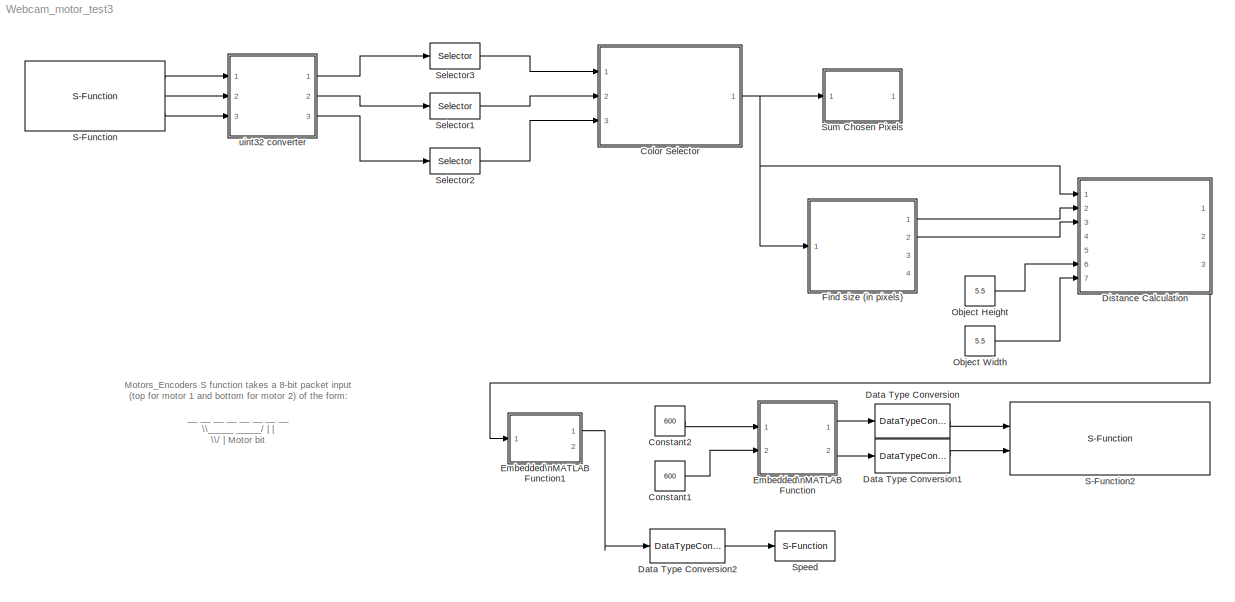
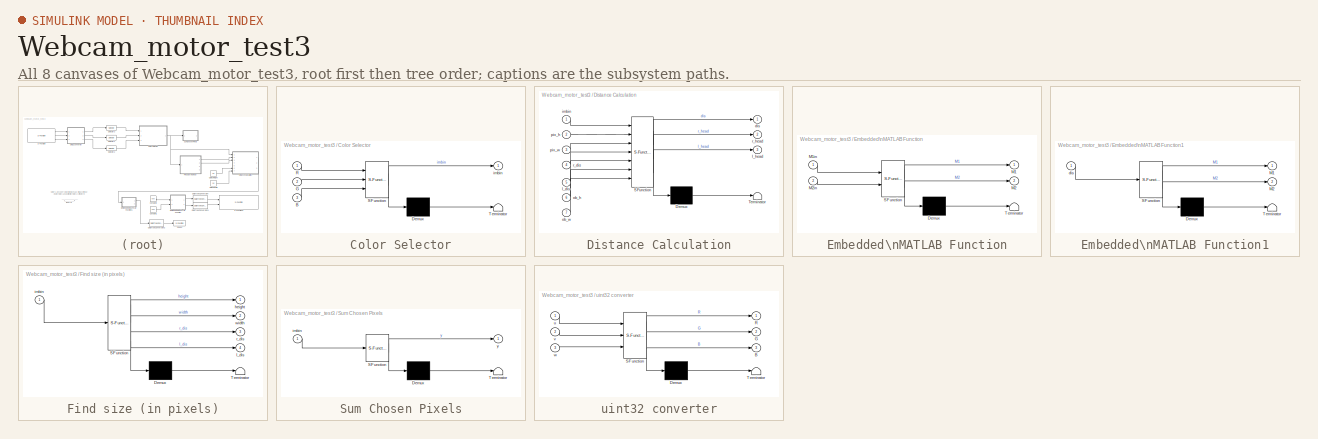
[diagram: thumbnail index - all 8 canvases of the model, root first then tree order]
MODEL Webcam_motor_test3
KIND model
BLOCK [SubSystem] Color Selector
  ErrorFcn = Stateflow.Translate.translate
  FunctionWithSeparateData = off
  MaskDescription = Embedded MATLAB block
  MaskDisplay = disp('color_selection');
  MaskHideContents = off
  MaskIconFrame = on
  MaskIconOpaque = off
  MaskIconRotate = none
  MaskIconUnits = normalized
  MaskPortRotate = default
  MaskSelfModifiable = on
  MaskType = Stateflow
  MinAlgLoopOccurrences = off
  Opaque = off
  PermitHierarchicalResolution = ExplicitOnly
  Ports = [3, 1]
  PropExecContextOutsideSubsystem = off
  RTWSystemCode = Auto
  RequestExecContextInheritance = off
  TreatAsAtomicUnit = on
BLOCK [Demux] Color Selector/ Demux 
  Outputs = 1
  Ports = [1, 1]
BLOCK [S-Function] Color Selector/ SFunction 
  EnableBusSupport = on
  FunctionName = sf_sfun
  PortCounts = [3 2]
  Ports = [3, 2]
  Tag = Stateflow S-Function Webcam_motor_test3 3
BLOCK [Terminator] Color Selector/ Terminator 
BLOCK [Inport] Color Selector/B
  IconDisplay = Port number
  Port = 3
BLOCK [Inport] Color Selector/G
  IconDisplay = Port number
  Port = 2
BLOCK [Inport] Color Selector/R
  IconDisplay = Port number
BLOCK [Outport] Color Selector/imbin
  IconDisplay = Port number
BLOCK [Constant] Constant1
  Value = 600
BLOCK [Constant] Constant2
  Value = 600
BLOCK [DataTypeConversion] Data Type Conversion
  OutDataTypeMode = uint8
  OutDataTypeStr = uint8
  RndMeth = Floor
  SaturateOnIntegerOverflow = off
BLOCK [DataTypeConversion] Data Type Conversion1
  OutDataTypeMode = uint8
  OutDataTypeStr = uint8
  RndMeth = Floor
  SaturateOnIntegerOverflow = off
BLOCK [DataTypeConversion] Data Type Conversion2
  OutDataTypeMode = uint32
  OutDataTypeStr = uint32
  RndMeth = Floor
  SaturateOnIntegerOverflow = off
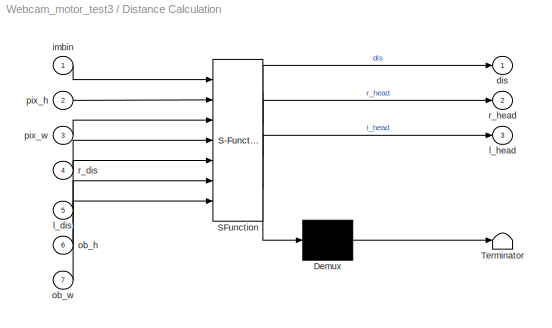
BLOCK [SubSystem] Distance Calculation
  ErrorFcn = Stateflow.Translate.translate
  FunctionWithSeparateData = off
  MaskDescription = Embedded MATLAB block
  MaskDisplay = disp('find_dis');
  MaskHideContents = off
  MaskIconFrame = on
  MaskIconOpaque = off
  MaskIconRotate = none
  MaskIconUnits = normalized
  MaskPortRotate = default
  MaskSelfModifiable = on
  MaskType = Stateflow
  MinAlgLoopOccurrences = off
  Opaque = off
  PermitHierarchicalResolution = ExplicitOnly
  Ports = [7, 3]
  PropExecContextOutsideSubsystem = off
  RTWSystemCode = Auto
  RequestExecContextInheritance = off
  TreatAsAtomicUnit = on
BLOCK [Demux] Distance Calculation/ Demux 
  Outputs = 1
  Ports = [1, 1]
BLOCK [S-Function] Distance Calculation/ SFunction 
  EnableBusSupport = on
  FunctionName = sf_sfun
  PortCounts = [7 4]
  Ports = [7, 4]
  Tag = Stateflow S-Function Webcam_motor_test3 6
BLOCK [Terminator] Distance Calculation/ Terminator 
BLOCK [Outport] Distance Calculation/dis
  IconDisplay = Port number
BLOCK [Inport] Distance Calculation/imbin
  IconDisplay = Port number
BLOCK [Inport] Distance Calculation/l_dis
  IconDisplay = Port number
  Port = 5
BLOCK [Outport] Distance Calculation/l_head
  IconDisplay = Port number
  Port = 3
BLOCK [Inport] Distance Calculation/ob_h
  IconDisplay = Port number
  Port = 6
BLOCK [Inport] Distance Calculation/ob_w
  IconDisplay = Port number
  Port = 7
BLOCK [Inport] Distance Calculation/pix_h
  IconDisplay = Port number
  Port = 2
BLOCK [Inport] Distance Calculation/pix_w
  IconDisplay = Port number
  Port = 3
BLOCK [Inport] Distance Calculation/r_dis
  IconDisplay = Port number
  Port = 4
BLOCK [Outport] Distance Calculation/r_head
  IconDisplay = Port number
  Port = 2
BLOCK [SubSystem] Embedded\nMATLAB Function
  ErrorFcn = Stateflow.Translate.translate
  FunctionWithSeparateData = off
  MaskDescription = Embedded MATLAB block
  MaskDisplay = disp('MotorPackets');
  MaskHideContents = off
  MaskIconFrame = on
  MaskIconOpaque = off
  MaskIconRotate = none
  MaskIconUnits = normalized
  MaskPortRotate = default
  MaskSelfModifiable = on
  MaskType = Stateflow
  MinAlgLoopOccurrences = off
  Opaque = off
  PermitHierarchicalResolution = ExplicitOnly
  Ports = [2, 2]
  PropExecContextOutsideSubsystem = off
  RTWSystemCode = Auto
  RequestExecContextInheritance = off
  TreatAsAtomicUnit = on
BLOCK [Demux] Embedded\nMATLAB Function/ Demux 
  Outputs = 1
  Ports = [1, 1]
BLOCK [S-Function] Embedded\nMATLAB Function/ SFunction 
  EnableBusSupport = on
  FunctionName = sf_sfun
  PortCounts = [2 3]
  Ports = [2, 3]
  Tag = Stateflow S-Function Webcam_motor_test3 5
BLOCK [Terminator] Embedded\nMATLAB Function/ Terminator 
BLOCK [Outport] Embedded\nMATLAB Function/M1
  IconDisplay = Port number
BLOCK [Inport] Embedded\nMATLAB Function/M1in
  IconDisplay = Port number
BLOCK [Outport] Embedded\nMATLAB Function/M2
  IconDisplay = Port number
  Port = 2
BLOCK [Inport] Embedded\nMATLAB Function/M2in
  IconDisplay = Port number
  Port = 2
BLOCK [SubSystem] Embedded\nMATLAB Function1
  FunctionWithSeparateData = off
  MaskDescription = Embedded MATLAB block
  MaskDisplay = disp('fcn');
  MaskHideContents = off
  MaskIconFrame = on
  MaskIconOpaque = off
  MaskIconRotate = none
  MaskIconUnits = autoscale
  MaskPortRotate = default
  MaskSelfModifiable = on
  MaskType = Stateflow
  MinAlgLoopOccurrences = off
  Opaque = off
  PermitHierarchicalResolution = ExplicitOnly
  Ports = [1, 2]
  PropExecContextOutsideSubsystem = off
  RTWSystemCode = Auto
  RequestExecContextInheritance = off
BLOCK [Demux] Embedded\nMATLAB Function1/ Demux 
  Outputs = 1
  Ports = [1, 1]
BLOCK [S-Function] Embedded\nMATLAB Function1/ SFunction 
  EnableBusSupport = on
  FunctionName = sf_sfun
  PortCounts = [1 3]
  Ports = [1, 3]
  Tag = Stateflow S-Function Webcam_motor_test3 7
BLOCK [Terminator] Embedded\nMATLAB Function1/ Terminator 
BLOCK [Outport] Embedded\nMATLAB Function1/M1
  IconDisplay = Port number
  OutDataType = sfix(16)
  OutScaling = 2^0
BLOCK [Outport] Embedded\nMATLAB Function1/M2
  IconDisplay = Port number
  Port = 2
BLOCK [Inport] Embedded\nMATLAB Function1/dis
  IconDisplay = Port number
  OutDataType = sfix(16)
  OutScaling = 2^0
BLOCK [SubSystem] Find size (in pixels)
  ErrorFcn = Stateflow.Translate.translate
  FunctionWithSeparateData = off
  MaskDescription = Embedded MATLAB block
  MaskDisplay = disp('hw_find');
  MaskHideContents = off
  MaskIconFrame = on
  MaskIconOpaque = off
  MaskIconRotate = none
  MaskIconUnits = normalized
  MaskPortRotate = default
  MaskSelfModifiable = on
  MaskType = Stateflow
  MinAlgLoopOccurrences = off
  Opaque = off
  PermitHierarchicalResolution = ExplicitOnly
  Ports = [1, 4]
  PropExecContextOutsideSubsystem = off
  RTWSystemCode = Auto
  RequestExecContextInheritance = off
  TreatAsAtomicUnit = on
BLOCK [Demux] Find size (in pixels)/ Demux 
  Outputs = 1
  Ports = [1, 1]
BLOCK [S-Function] Find size (in pixels)/ SFunction 
  EnableBusSupport = on
  FunctionName = sf_sfun
  PortCounts = [1 5]
  Ports = [1, 5]
  Tag = Stateflow S-Function Webcam_motor_test3 4
BLOCK [Terminator] Find size (in pixels)/ Terminator 
BLOCK [Outport] Find size (in pixels)/height
  IconDisplay = Port number
BLOCK [Inport] Find size (in pixels)/imbin
  IconDisplay = Port number
BLOCK [Outport] Find size (in pixels)/l_dis
  IconDisplay = Port number
  Port = 4
BLOCK [Outport] Find size (in pixels)/r_dis
  IconDisplay = Port number
  Port = 3
BLOCK [Outport] Find size (in pixels)/width
  IconDisplay = Port number
  Port = 2
BLOCK [Constant] Object Height
  Value = 5.5
BLOCK [Constant] Object Width
  Value = 5.5
BLOCK [S-Function] S-Function
  EnableBusSupport = off
  FunctionName = WebcamTest
  Ports = [0, 3]
BLOCK [S-Function] S-Function2
  EnableBusSupport = off
  FunctionName = Motors_Only_Boat2
  Ports = [2]
BLOCK [Selector] Selector1
  IndexOptions = Starting index (dialog),Starting index (dialog)
  Indices = 70,1
  InputPortWidth = 3
  NumberOfDimensions = 2
  OutputSizes = 340,640
  Ports = [1, 1]
BLOCK [Selector] Selector2
  IndexOptions = Starting index (dialog),Starting index (dialog)
  Indices = 70,1
  InputPortWidth = 3
  NumberOfDimensions = 2
  OutputSizes = 340,640
  Ports = [1, 1]
BLOCK [Selector] Selector3
  IndexOptions = Starting index (dialog),Starting index (dialog)
  Indices = 70,1
  InputPortWidth = 3
  NumberOfDimensions = 2
  OutputSizes = 340,640
  Ports = [1, 1]
BLOCK [S-Function] Speed
  EnableBusSupport = off
  FunctionName = printOut
  Ports = [1]
BLOCK [SubSystem] Sum Chosen Pixels
  ErrorFcn = Stateflow.Translate.translate
  FunctionWithSeparateData = off
  MaskDescription = Embedded MATLAB block
  MaskDisplay = disp('fcn');
  MaskHideContents = off
  MaskIconFrame = on
  MaskIconOpaque = off
  MaskIconRotate = none
  MaskIconUnits = normalized
  MaskPortRotate = default
  MaskSelfModifiable = on
  MaskType = Stateflow
  MinAlgLoopOccurrences = off
  Opaque = off
  PermitHierarchicalResolution = ExplicitOnly
  Ports = [1, 1]
  PropExecContextOutsideSubsystem = off
  RTWSystemCode = Auto
  RequestExecContextInheritance = off
  TreatAsAtomicUnit = on
BLOCK [Demux] Sum Chosen Pixels/ Demux 
  Outputs = 1
  Ports = [1, 1]
BLOCK [S-Function] Sum Chosen Pixels/ SFunction 
  EnableBusSupport = on
  FunctionName = sf_sfun
  PortCounts = [1 2]
  Ports = [1, 2]
  Tag = Stateflow S-Function Webcam_motor_test3 2
BLOCK [Terminator] Sum Chosen Pixels/ Terminator 
BLOCK [Inport] Sum Chosen Pixels/imbin
  IconDisplay = Port number
BLOCK [Outport] Sum Chosen Pixels/y
  IconDisplay = Port number
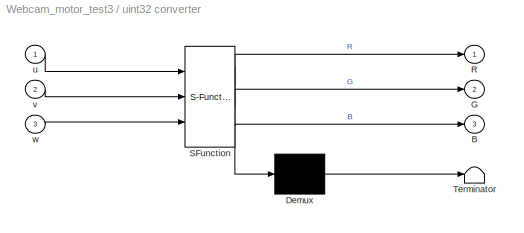
BLOCK [SubSystem] uint32 converter
  ErrorFcn = Stateflow.Translate.translate
  FunctionWithSeparateData = off
  MaskDescription = Embedded MATLAB block
  MaskDisplay = disp('fcn');
  MaskHideContents = off
  MaskIconFrame = on
  MaskIconOpaque = off
  MaskIconRotate = none
  MaskIconUnits = normalized
  MaskPortRotate = default
  MaskSelfModifiable = on
  MaskType = Stateflow
  MinAlgLoopOccurrences = off
  Opaque = off
  PermitHierarchicalResolution = ExplicitOnly
  Ports = [3, 3]
  PropExecContextOutsideSubsystem = off
  RTWSystemCode = Auto
  RequestExecContextInheritance = off
  TreatAsAtomicUnit = on
BLOCK [Demux] uint32 converter/ Demux 
  Outputs = 1
  Ports = [1, 1]
BLOCK [S-Function] uint32 converter/ SFunction 
  EnableBusSupport = on
  FunctionName = sf_sfun
  PortCounts = [3 4]
  Ports = [3, 4]
  Tag = Stateflow S-Function Webcam_motor_test3 1
BLOCK [Terminator] uint32 converter/ Terminator 
BLOCK [Outport] uint32 converter/B
  IconDisplay = Port number
  Port = 3
BLOCK [Outport] uint32 converter/G
  IconDisplay = Port number
  Port = 2
BLOCK [Outport] uint32 converter/R
  IconDisplay = Port number
BLOCK [Inport] uint32 converter/u
  IconDisplay = Port number
BLOCK [Inport] uint32 converter/v
  IconDisplay = Port number
  Port = 2
BLOCK [Inport] uint32 converter/w
  IconDisplay = Port number
  Port = 3
ANNOTATION (root): Motors_Encoders S function takes a 8-bit packet input\n(top for motor 1 and bottom for motor 2) of the form:\n\n __ __ __ __ __ __ __ __ \n \\_____ _____/ | | \n \\/ | Motor bit \n Motor Speed | 0 - Motor1\n | 1 - Motor 2\n Direction Bit\n\nAnd sends it to the Arduino. The outputs are encoder clicks\nsince the last time step output as 8-bit signed chars.
LINE Color Selector/ Demux :1 -> Color Selector/ Terminator :1
LINE Color Selector/ SFunction :1 -> Color Selector/ Demux :1
LINE Color Selector/ SFunction :2 -> Color Selector/imbin:1
LINE Color Selector/B:1 -> Color Selector/ SFunction :3
LINE Color Selector/G:1 -> Color Selector/ SFunction :2
LINE Color Selector/R:1 -> Color Selector/ SFunction :1
NET Color Selector:1 -> Distance Calculation:1, Find size (in pixels):1, Sum Chosen Pixels:1
LINE Constant1:1 -> Embedded\nMATLAB Function:2
LINE Constant2:1 -> Embedded\nMATLAB Function:1
LINE Data Type Conversion1:1 -> S-Function2:2
LINE Data Type Conversion2:1 -> Speed:1
LINE Data Type Conversion:1 -> S-Function2:1
LINE Distance Calculation/ Demux :1 -> Distance Calculation/ Terminator :1
LINE Distance Calculation/ SFunction :1 -> Distance Calculation/ Demux :1
LINE Distance Calculation/ SFunction :2 -> Distance Calculation/dis:1
LINE Distance Calculation/ SFunction :3 -> Distance Calculation/r_head:1
LINE Distance Calculation/ SFunction :4 -> Distance Calculation/l_head:1
LINE Distance Calculation/imbin:1 -> Distance Calculation/ SFunction :1
LINE Distance Calculation/l_dis:1 -> Distance Calculation/ SFunction :5
LINE Distance Calculation/ob_h:1 -> Distance Calculation/ SFunction :6
LINE Distance Calculation/ob_w:1 -> Distance Calculation/ SFunction :7
LINE Distance Calculation/pix_h:1 -> Distance Calculation/ SFunction :2
LINE Distance Calculation/pix_w:1 -> Distance Calculation/ SFunction :3
LINE Distance Calculation/r_dis:1 -> Distance Calculation/ SFunction :4
LINE Distance Calculation:1 -> Embedded\nMATLAB Function1:1
LINE Embedded\nMATLAB Function/ Demux :1 -> Embedded\nMATLAB Function/ Terminator :1
LINE Embedded\nMATLAB Function/ SFunction :1 -> Embedded\nMATLAB Function/ Demux :1
LINE Embedded\nMATLAB Function/ SFunction :2 -> Embedded\nMATLAB Function/M1:1
LINE Embedded\nMATLAB Function/ SFunction :3 -> Embedded\nMATLAB Function/M2:1
LINE Embedded\nMATLAB Function/M1in:1 -> Embedded\nMATLAB Function/ SFunction :1
LINE Embedded\nMATLAB Function/M2in:1 -> Embedded\nMATLAB Function/ SFunction :2
LINE Embedded\nMATLAB Function1/ Demux :1 -> Embedded\nMATLAB Function1/ Terminator :1
LINE Embedded\nMATLAB Function1/ SFunction :1 -> Embedded\nMATLAB Function1/ Demux :1
LINE Embedded\nMATLAB Function1/ SFunction :2 -> Embedded\nMATLAB Function1/M1:1
LINE Embedded\nMATLAB Function1/ SFunction :3 -> Embedded\nMATLAB Function1/M2:1
LINE Embedded\nMATLAB Function1/dis:1 -> Embedded\nMATLAB Function1/ SFunction :1
LINE Embedded\nMATLAB Function1:1 -> Data Type Conversion2:1
LINE Embedded\nMATLAB Function:1 -> Data Type Conversion:1
LINE Embedded\nMATLAB Function:2 -> Data Type Conversion1:1
LINE Find size (in pixels)/ Demux :1 -> Find size (in pixels)/ Terminator :1
LINE Find size (in pixels)/ SFunction :1 -> Find size (in pixels)/ Demux :1
LINE Find size (in pixels)/ SFunction :2 -> Find size (in pixels)/height:1
LINE Find size (in pixels)/ SFunction :3 -> Find size (in pixels)/width:1
LINE Find size (in pixels)/ SFunction :4 -> Find size (in pixels)/r_dis:1
LINE Find size (in pixels)/ SFunction :5 -> Find size (in pixels)/l_dis:1
LINE Find size (in pixels)/imbin:1 -> Find size (in pixels)/ SFunction :1
LINE Find size (in pixels):1 -> Distance Calculation:2
LINE Find size (in pixels):2 -> Distance Calculation:3
LINE Object Height:1 -> Distance Calculation:6
LINE Object Width:1 -> Distance Calculation:7
LINE S-Function:1 -> uint32 converter:1
LINE S-Function:2 -> uint32 converter:2
LINE S-Function:3 -> uint32 converter:3
LINE Selector1:1 -> Color Selector:2
LINE Selector2:1 -> Color Selector:3
LINE Selector3:1 -> Color Selector:1
LINE Sum Chosen Pixels/ Demux :1 -> Sum Chosen Pixels/ Terminator :1
LINE Sum Chosen Pixels/ SFunction :1 -> Sum Chosen Pixels/ Demux :1
LINE Sum Chosen Pixels/ SFunction :2 -> Sum Chosen Pixels/y:1
LINE Sum Chosen Pixels/imbin:1 -> Sum Chosen Pixels/ SFunction :1
LINE uint32 converter/ Demux :1 -> uint32 converter/ Terminator :1
LINE uint32 converter/ SFunction :1 -> uint32 converter/ Demux :1
LINE uint32 converter/ SFunction :2 -> uint32 converter/R:1
LINE uint32 converter/ SFunction :3 -> uint32 converter/G:1
LINE uint32 converter/ SFunction :4 -> uint32 converter/B:1
LINE uint32 converter/u:1 -> uint32 converter/ SFunction :1
LINE uint32 converter/v:1 -> uint32 converter/ SFunction :2
LINE uint32 converter/w:1 -> uint32 converter/ SFunction :3
LINE uint32 converter:1 -> Selector3:1
LINE uint32 converter:2 -> Selector1:1
LINE uint32 converter:3 -> Selector2:1
note: NET lines group one-source signal fan-out (src -> all destinations, sorted); 1:1 wires keep LINE
CHART uint32 converter states=1 transitions=1
  STATE_LABEL 'eML_blk_kernel()'
CHART Sum Chosen Pixels states=1 transitions=1
  STATE_LABEL 'eML_blk_kernel()'
CHART Color Selector states=1 transitions=1
  STATE_LABEL 'eML_blk_kernel()'
CHART Find size (in pixels) states=1 transitions=1
  STATE_LABEL 'eML_blk_kernel()'
CHART Embedded\nMATLAB Function states=1 transitions=1
  STATE_LABEL 'eML_blk_kernel()'
CHART Distance Calculation states=1 transitions=1
  STATE_LABEL 'eML_blk_kernel()'
CHART Embedded\nMATLAB Function1 states=1 transitions=1
  STATE_LABEL 'eML_blk_kernel()'
